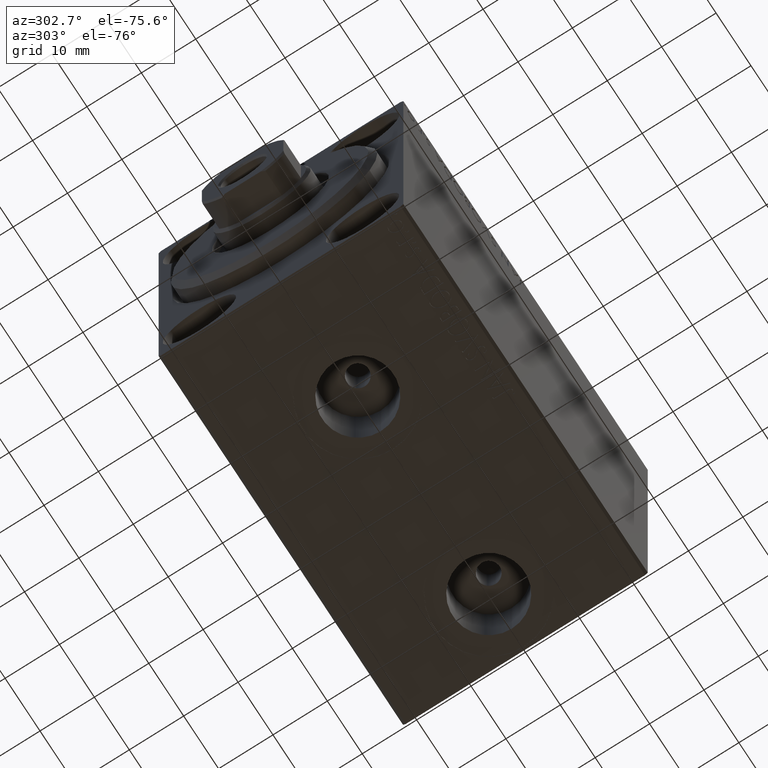
[diagram: clean part render]
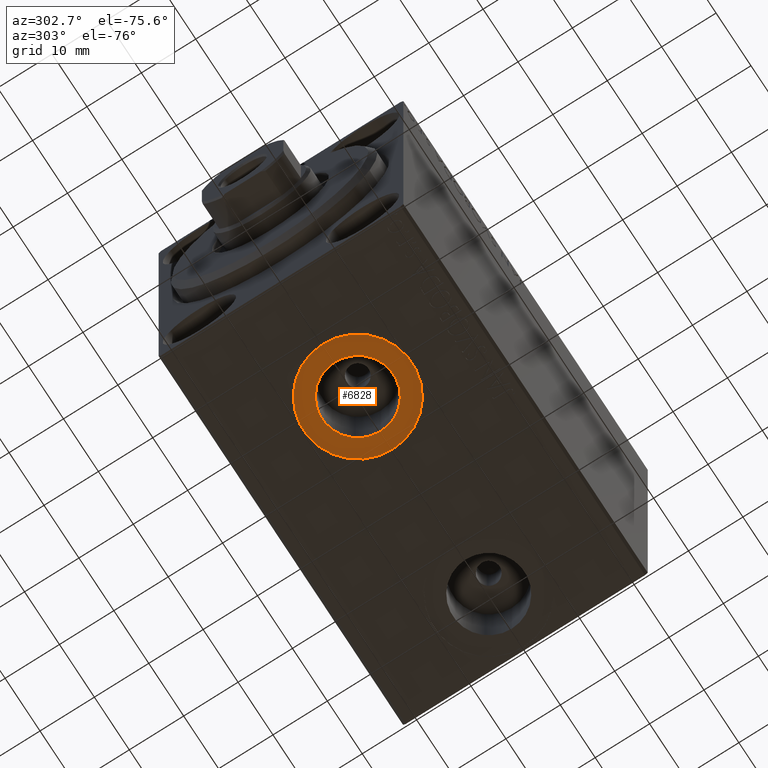
[diagram: same view with one face highlighted and labeled with its STEP entity id]
A machine part, auxiliary view. The second image highlights one B-rep face of the part: STEP entity #6828.
In plain terms, the highlighted planar face has unit normal (0, 0, -1).
Its self-contained STEP definition (entity closure, byte-faithful):
#413 = CARTESIAN_POINT ( 'NONE',  ( 11.99999999999999822, -3.594347949397319039E-15, -32.40000000000000568 ) ) ;
#1215 = FACE_BOUND ( 'NONE', #30622, .T. ) ;
#2535 = CIRCLE ( 'NONE', #30238, 10.00000000000000000 ) ;
#2629 = AXIS2_PLACEMENT_3D ( 'NONE', #11716, #7278, #37958 ) ;
#5835 = CIRCLE ( 'NONE', #33515, 6.580000000000002736 ) ;
#6306 = AXIS2_PLACEMENT_3D ( 'NONE', #10453, #34039, #30254 ) ;
#6425 = EDGE_CURVE ( 'NONE', #43666, #31804, #2535, .T. ) ;
#6431 = CARTESIAN_POINT ( 'NONE',  ( 22.00000000000000000, -3.594347949397319039E-15, -32.40000000000000568 ) ) ;
#6646 = DIRECTION ( 'NONE',  ( 0.000000000000000000, 0.000000000000000000, -1.000000000000000000 ) ) ;
#6828 = ADVANCED_FACE ( 'NONE', ( #1215, #20808 ), #10794, .T. ) ;
#7278 = DIRECTION ( 'NONE',  ( 0.000000000000000000, 0.000000000000000000, -1.000000000000000000 ) ) ;
#9166 = CIRCLE ( 'NONE', #6306, 10.00000000000000000 ) ;
#10453 = CARTESIAN_POINT ( 'NONE',  ( 22.00000000000000000, -3.594347949397319039E-15, -32.40000000000000568 ) ) ;
#10610 = EDGE_CURVE ( 'NONE', #42674, #20202, #23233, .T. ) ;
#10794 = PLANE ( 'NONE',  #35195 ) ;
#11033 = CARTESIAN_POINT ( 'NONE',  ( 22.00000000000000000, -3.594347949397319039E-15, -32.40000000000000568 ) ) ;
#11122 = EDGE_CURVE ( 'NONE', #31804, #43666, #9166, .T. ) ;
#11716 = CARTESIAN_POINT ( 'NONE',  ( 22.00000000000000000, -3.594347949397319039E-15, -32.40000000000000568 ) ) ;
#19499 = ORIENTED_EDGE ( 'NONE', *, *, #11122, .T. ) ;
#20202 = VERTEX_POINT ( 'NONE', #35039 ) ;
#20808 = FACE_OUTER_BOUND ( 'NONE', #22513, .T. ) ;
#21693 = DIRECTION ( 'NONE',  ( -1.000000000000000000, 0.000000000000000000, -0.000000000000000000 ) ) ;
#22513 = EDGE_LOOP ( 'NONE', ( #38466, #19499 ) ) ;
#23233 = CIRCLE ( 'NONE', #2629, 6.580000000000002736 ) ;
#24873 = CARTESIAN_POINT ( 'NONE',  ( 32.00000000000000000, -2.369701150249966375E-15, -32.40000000000000568 ) ) ;
#25048 = DIRECTION ( 'NONE',  ( -1.000000000000000000, 0.000000000000000000, 0.000000000000000000 ) ) ;
#30238 = AXIS2_PLACEMENT_3D ( 'NONE', #6431, #6646, #33995 ) ;
#30254 = DIRECTION ( 'NONE',  ( -1.000000000000000000, 0.000000000000000000, 0.000000000000000000 ) ) ;
#30622 = EDGE_LOOP ( 'NONE', ( #39532, #37471 ) ) ;
#31257 = CARTESIAN_POINT ( 'NONE',  ( 0.000000000000000000, 0.000000000000000000, -32.40000000000000568 ) ) ;
#31804 = VERTEX_POINT ( 'NONE', #24873 ) ;
#33515 = AXIS2_PLACEMENT_3D ( 'NONE', #11033, #41501, #25048 ) ;
#33995 = DIRECTION ( 'NONE',  ( -1.000000000000000000, 0.000000000000000000, 0.000000000000000000 ) ) ;
#34039 = DIRECTION ( 'NONE',  ( 0.000000000000000000, 0.000000000000000000, -1.000000000000000000 ) ) ;
#34181 = CARTESIAN_POINT ( 'NONE',  ( 15.41999999999999638, -3.594347949397319039E-15, -32.40000000000000568 ) ) ;
#34354 = EDGE_CURVE ( 'NONE', #20202, #42674, #5835, .T. ) ;
#35039 = CARTESIAN_POINT ( 'NONE',  ( 28.58000000000000185, -2.788530355558360786E-15, -32.40000000000000568 ) ) ;
#35195 = AXIS2_PLACEMENT_3D ( 'NONE', #31257, #41924, #21693 ) ;
#37471 = ORIENTED_EDGE ( 'NONE', *, *, #34354, .F. ) ;
#37958 = DIRECTION ( 'NONE',  ( -1.000000000000000000, 0.000000000000000000, 0.000000000000000000 ) ) ;
#38466 = ORIENTED_EDGE ( 'NONE', *, *, #6425, .T. ) ;
#39532 = ORIENTED_EDGE ( 'NONE', *, *, #10610, .F. ) ;
#41501 = DIRECTION ( 'NONE',  ( 0.000000000000000000, 0.000000000000000000, -1.000000000000000000 ) ) ;
#41924 = DIRECTION ( 'NONE',  ( 0.000000000000000000, 0.000000000000000000, -1.000000000000000000 ) ) ;
#42674 = VERTEX_POINT ( 'NONE', #34181 ) ;
#43666 = VERTEX_POINT ( 'NONE', #413 ) ;